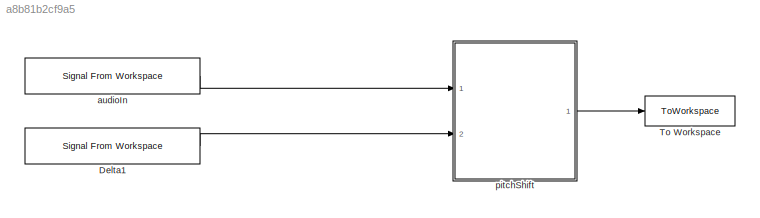
MODEL slx_a8b81b2cf9a5
KIND model
CONFIG AbsTol = auto
CONFIG EnableMultiTasking = off
CONFIG FixedStep = auto
CONFIG InitFcn = initCallback
CONFIG MaxStep = auto
CONFIG MinStep = auto
CONFIG PostLoadFcn = postLoadCallback
CONFIG RelTol = 1e-3
CONFIG SampleTimeConstraint = Unconstrained
CONFIG SolverName = VariableStepAuto
CONFIG StartTime = 0.0
CONFIG StopFcn = stopCallback
CONFIG StopTime = 18
BLOCK [Reference] Delta1  REF=dspsrcs4/Signal From
Workspace
  Ports = [0, 1]
  SourceBlock = dspsrcs4/Signal From\nWorkspace
  SourceProductBaseCode = DS
  SourceType = Signal From Workspace
BLOCK [ToWorkspace] To Workspace
  FixptAsFi = on
  MaxDataPoints = inf
  Ports = [1]
  SampleTime = modelParams.audio.samplePeriod
  Save2DSignal = 2-D array (concatenate along first dimension)
  VariableName = AudioOut
BLOCK [Reference] audioIn  REF=dspsrcs4/Signal From
Workspace
  Ports = [0, 1]
  SourceBlock = dspsrcs4/Signal From\nWorkspace
  SourceProductBaseCode = DS
  SourceType = Signal From Workspace
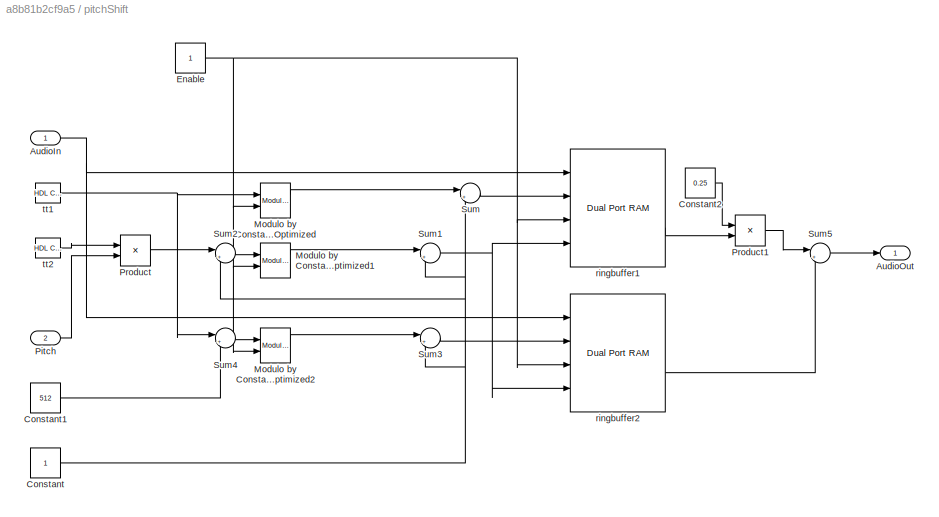
BLOCK [SubSystem] pitchShift
  Ports = [2, 1]
  RequestExecContextInheritance = off
BLOCK [Inport] pitchShift/AudioIn
  SampleTime = modelParams.audio.samplePeriod
BLOCK [Outport] pitchShift/AudioOut
  SampleTime = modelParams.audio.samplePeriod
BLOCK [Constant] pitchShift/Constant
  OutDataTypeStr = uint32
  SampleTime = modelParams.audio.samplePeriod
BLOCK [Constant] pitchShift/Constant1
  OutDataTypeStr = uint32
  SampleTime = modelParams.audio.samplePeriod
  Value = 512
BLOCK [Constant] pitchShift/Constant2
  OutDataTypeStr = fixdt(0,modelParams.audio.wordLength,modelParams.audio.fractionLength)
  SampleTime = modelParams.audio.samplePeriod
  Value = 0.25
BLOCK [Constant] pitchShift/Enable
  OutDataTypeStr = boolean
  SampleTime = modelParams.audio.samplePeriod
BLOCK [Reference] pitchShift/Modulo by Constant HDL Optimized  REF=embmathops/Modulo by Constant
HDL Optimized
  Ports = [2, 2]
  SourceBlock = embmathops/Modulo by Constant\nHDL Optimized
  SourceProductBaseCode = SL
  SourceType = fixed.system.internal.modbyconstant_hdl
BLOCK [Reference] pitchShift/Modulo by Constant HDL Optimized1  REF=embmathops/Modulo by Constant
HDL Optimized
  Ports = [2, 2]
  SourceBlock = embmathops/Modulo by Constant\nHDL Optimized
  SourceProductBaseCode = SL
  SourceType = fixed.system.internal.modbyconstant_hdl
BLOCK [Reference] pitchShift/Modulo by Constant HDL Optimized2  REF=embmathops/Modulo by Constant
HDL Optimized
  Ports = [2, 2]
  SourceBlock = embmathops/Modulo by Constant\nHDL Optimized
  SourceProductBaseCode = SL
  SourceType = fixed.system.internal.modbyconstant_hdl
BLOCK [Inport] pitchShift/Pitch
  Port = 2
  SampleTime = modelParams.audio.samplePeriod
BLOCK [Product] pitchShift/Product
  Ports = [2, 1]
  SampleTime = modelParams.audio.samplePeriod
BLOCK [Product] pitchShift/Product1
  OutDataTypeStr = fixdt(1,modelParams.audio.wordLength,modelParams.audio.fractionLength)
  Ports = [2, 1]
  SampleTime = modelParams.audio.samplePeriod
  SaturateOnIntegerOverflow = on
BLOCK [Sum] pitchShift/Sum
  Inputs = |++
  OutDataTypeStr = fixdt(0,modelParams.dpramAddressSize,0)
  Ports = [2, 1]
  SampleTime = modelParams.audio.samplePeriod
BLOCK [Sum] pitchShift/Sum1
  Inputs = |++
  OutDataTypeStr = fixdt(0,modelParams.dpramAddressSize,0)
  Ports = [2, 1]
  SampleTime = modelParams.audio.samplePeriod
BLOCK [Sum] pitchShift/Sum2
  Inputs = |+-
  OutDataTypeStr = fixdt(0,modelParams.dpramAddressSize,0)
  Ports = [2, 1]
  SampleTime = modelParams.audio.samplePeriod
BLOCK [Sum] pitchShift/Sum3
  Inputs = |++
  OutDataTypeStr = fixdt(0,modelParams.dpramAddressSize,0)
  Ports = [2, 1]
  SampleTime = modelParams.audio.samplePeriod
BLOCK [Sum] pitchShift/Sum4
  Inputs = |++
  OutDataTypeStr = fixdt(0,modelParams.dpramAddressSize,0)
  Ports = [2, 1]
  SampleTime = modelParams.audio.samplePeriod
BLOCK [Sum] pitchShift/Sum5
  Inputs = |++
  OutDataTypeStr = fixdt(1,modelParams.audio.wordLength,modelParams.audio.fractionLength)
  Ports = [2, 1]
  SampleTime = modelParams.audio.samplePeriod
  SaturateOnIntegerOverflow = on
BLOCK [Reference] pitchShift/ringbuffer1  REF=hdlsllib/HDL RAMs/Dual Port RAM
  Ports = [4, 2]
  SourceBlock = hdlsllib/HDL RAMs/Dual Port RAM
  SourceProductBaseCode = SL
  SourceType = Dual-port RAM
BLOCK [Reference] pitchShift/ringbuffer2  REF=hdlsllib/HDL RAMs/Dual Port RAM
  Ports = [4, 2]
  SourceBlock = hdlsllib/HDL RAMs/Dual Port RAM
  SourceProductBaseCode = SL
  SourceType = Dual-port RAM
BLOCK [Reference] pitchShift/tt1  REF=hdlsllib/Sources/HDL Counter
  Ports = [0, 1]
  SourceBlock = hdlsllib/Sources/HDL Counter
  SourceProductBaseCode = SL
  SourceType = HDL Counter
BLOCK [Reference] pitchShift/tt2  REF=hdlsllib/Sources/HDL Counter
  Ports = [0, 1]
  SourceBlock = hdlsllib/Sources/HDL Counter
  SourceProductBaseCode = SL
  SourceType = HDL Counter
LINE Delta1:1 -> pitchShift:2
LINE audioIn:1 -> pitchShift:1
NET pitchShift/AudioIn:1 -> pitchShift/ringbuffer1:1, pitchShift/ringbuffer2:1
LINE pitchShift/Constant1:1 -> pitchShift/Sum4:2
LINE pitchShift/Constant2:1 -> pitchShift/Product1:1
NET pitchShift/Constant:1 -> pitchShift/Sum1:2, pitchShift/Sum2:2, pitchShift/Sum3:2, pitchShift/Sum:2
NET pitchShift/Enable:1 -> pitchShift/Modulo by Constant HDL Optimized1:2, pitchShift/Modulo by Constant HDL Optimized2:2, pitchShift/Modulo by Constant HDL Optimized:2, pitchShift/ringbuffer1:3, pitchShift/ringbuffer2:3
LINE pitchShift/Modulo by Constant HDL Optimized1:1 -> pitchShift/Sum1:1
LINE pitchShift/Modulo by Constant HDL Optimized2:1 -> pitchShift/Sum3:1
LINE pitchShift/Modulo by Constant HDL Optimized:1 -> pitchShift/Sum:1
LINE pitchShift/Pitch:1 -> pitchShift/Product:2
LINE pitchShift/Product1:1 -> pitchShift/Sum5:1
LINE pitchShift/Product:1 -> pitchShift/Sum2:1
NET pitchShift/Sum1:1 -> pitchShift/ringbuffer1:4, pitchShift/ringbuffer2:4
LINE pitchShift/Sum2:1 -> pitchShift/Modulo by Constant HDL Optimized1:1
LINE pitchShift/Sum3:1 -> pitchShift/ringbuffer2:2
LINE pitchShift/Sum4:1 -> pitchShift/Modulo by Constant HDL Optimized2:1
LINE pitchShift/Sum5:1 -> pitchShift/AudioOut:1
LINE pitchShift/Sum:1 -> pitchShift/ringbuffer1:2
LINE pitchShift/ringbuffer1:2 -> pitchShift/Product1:2
LINE pitchShift/ringbuffer2:2 -> pitchShift/Sum5:2
NET pitchShift/tt1:1 -> pitchShift/Modulo by Constant HDL Optimized:1, pitchShift/Sum4:1
LINE pitchShift/tt2:1 -> pitchShift/Product:1
LINE pitchShift:1 -> To Workspace:1
note: NET lines group one-source signal fan-out (src -> all destinations, sorted); 1:1 wires keep LINE
